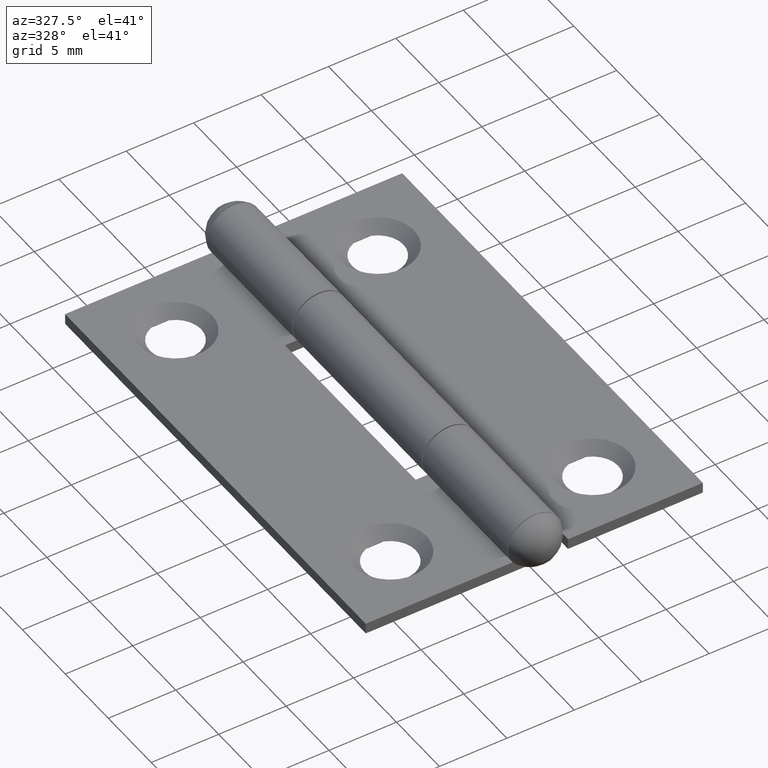
[diagram: clean part render]
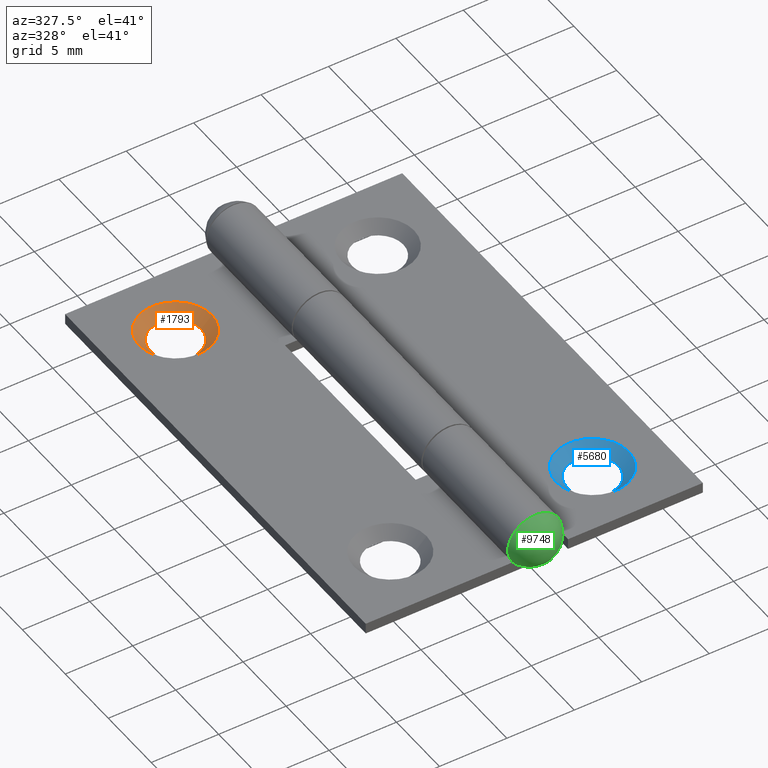
[diagram: same view with three faces highlighted in distinct colors, each labeled with its STEP entity id]
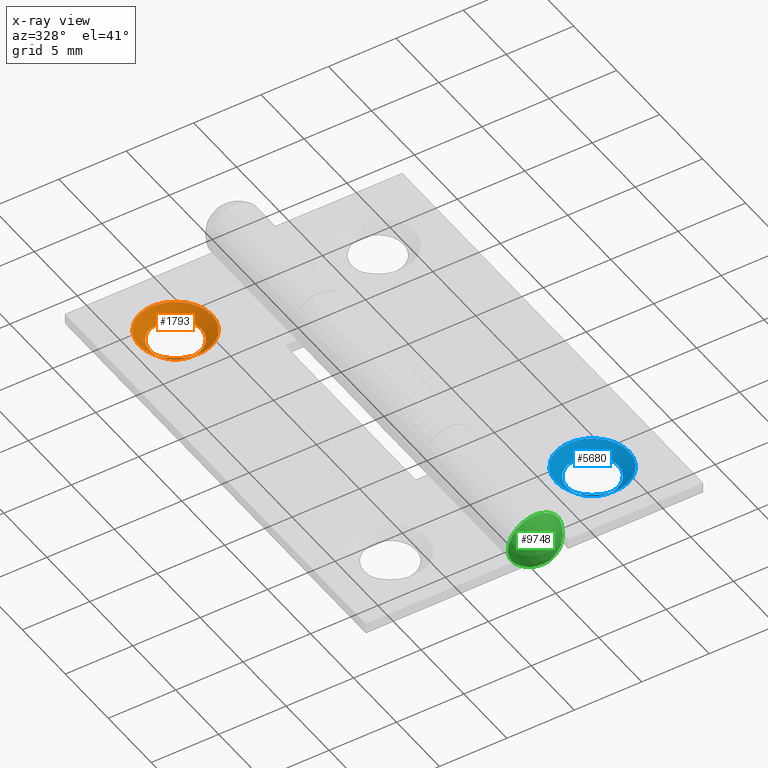
[diagram: x-ray of the same camera — body ghosted, the three highlighted faces saturated]
A machine part, auxiliary view with three faces highlighted in distinct colors.
The next image is the same camera in x-ray (body ghosted, the three faces saturated) — at least one of them is partly hidden behind the body in this view.
Their STEP definitions:

[orange] entity #1793 — the highlighted conical surface has half-angle 45 deg.
#804 = AXIS2_PLACEMENT_3D ( 'NONE', #2760, #5975, #3543 ) ;
#1010 = CONICAL_SURFACE ( 'NONE', #9125, 1.900000000000000577, 0.7853981633974504994 ) ;
#1205 = DIRECTION ( 'NONE',  ( -1.127570259384924611E-16, 0.000000000000000000, -1.000000000000000000 ) ) ;
#1235 = CARTESIAN_POINT ( 'NONE',  ( -9.500000000000005329, 12.49999999999999822, 0.8000000000000010436 ) ) ;
#1275 = EDGE_CURVE ( 'NONE', #7645, #7645, #4581, .T. ) ;
#1793 = ADVANCED_FACE ( 'NONE', ( #4329, #8900 ), #1010, .F. ) ;
#2004 = CIRCLE ( 'NONE', #7117, 2.700000000000021938 ) ;
#2298 = EDGE_LOOP ( 'NONE', ( #8690 ) ) ;
#2364 = EDGE_LOOP ( 'NONE', ( #7706 ) ) ;
#2760 = CARTESIAN_POINT ( 'NONE',  ( -9.500000000000005329, 12.49999999999999822, 0.000000000000000000 ) ) ;
#3543 = DIRECTION ( 'NONE',  ( 1.000000000000000000, 0.000000000000000000, 0.000000000000000000 ) ) ;
#4329 = FACE_OUTER_BOUND ( 'NONE', #2364, .T. ) ;
#4498 = CARTESIAN_POINT ( 'NONE',  ( -7.600000000000004086, 12.49999999999999822, 0.000000000000000000 ) ) ;
#4581 = CIRCLE ( 'NONE', #804, 1.900000000000000577 ) ;
#5975 = DIRECTION ( 'NONE',  ( 0.000000000000000000, 0.000000000000000000, 1.000000000000000000 ) ) ;
#6920 = CARTESIAN_POINT ( 'NONE',  ( -12.20000000000002593, 12.49999999999999822, 0.8000000000000013767 ) ) ;
#7117 = AXIS2_PLACEMENT_3D ( 'NONE', #1235, #1205, #9743 ) ;
#7645 = VERTEX_POINT ( 'NONE', #4498 ) ;
#7706 = ORIENTED_EDGE ( 'NONE', *, *, #7957, .F. ) ;
#7814 = DIRECTION ( 'NONE',  ( 1.000000000000000000, 0.000000000000000000, 0.000000000000000000 ) ) ;
#7957 = EDGE_CURVE ( 'NONE', #9865, #9865, #2004, .T. ) ;
#8623 = CARTESIAN_POINT ( 'NONE',  ( -9.500000000000005329, 12.49999999999999822, -1.704365815147212970E-14 ) ) ;
#8690 = ORIENTED_EDGE ( 'NONE', *, *, #1275, .F. ) ;
#8900 = FACE_BOUND ( 'NONE', #2298, .T. ) ;
#9125 = AXIS2_PLACEMENT_3D ( 'NONE', #8623, #9468, #7814 ) ;
#9468 = DIRECTION ( 'NONE',  ( 0.000000000000000000, 0.000000000000000000, 1.000000000000000000 ) ) ;
#9743 = DIRECTION ( 'NONE',  ( -1.000000000000000000, 0.000000000000000000, 1.204669080539439483E-16 ) ) ;
#9865 = VERTEX_POINT ( 'NONE', #6920 ) ;

[blue] entity #5680 — the highlighted conical surface has half-angle 45 deg.
#348 = DIRECTION ( 'NONE',  ( 0.000000000000000000, 0.000000000000000000, 1.000000000000000000 ) ) ;
#1617 = AXIS2_PLACEMENT_3D ( 'NONE', #10051, #7012, #2194 ) ;
#2179 = CARTESIAN_POINT ( 'NONE',  ( -12.19999999999999929, 12.49999999999999822, 0.8000000000000013767 ) ) ;
#2189 = AXIS2_PLACEMENT_3D ( 'NONE', #7026, #3841, #3038 ) ;
#2194 = DIRECTION ( 'NONE',  ( -1.000000000000000000, 0.000000000000000000, 1.204669080539452055E-16 ) ) ;
#2213 = VERTEX_POINT ( 'NONE', #2179 ) ;
#2246 = EDGE_CURVE ( 'NONE', #9470, #9470, #8902, .T. ) ;
#2282 = EDGE_LOOP ( 'NONE', ( #6548 ) ) ;
#3038 = DIRECTION ( 'NONE',  ( 1.000000000000000000, 0.000000000000000000, 0.000000000000000000 ) ) ;
#3459 = CARTESIAN_POINT ( 'NONE',  ( -9.500000000000005329, 12.49999999999999822, 7.025630077706070310E-15 ) ) ;
#3841 = DIRECTION ( 'NONE',  ( 0.000000000000000000, 0.000000000000000000, 1.000000000000000000 ) ) ;
#4286 = DIRECTION ( 'NONE',  ( 1.000000000000000000, 0.000000000000000000, 0.000000000000000000 ) ) ;
#5096 = FACE_OUTER_BOUND ( 'NONE', #5580, .T. ) ;
#5580 = EDGE_LOOP ( 'NONE', ( #10023 ) ) ;
#5586 = CIRCLE ( 'NONE', #1617, 2.699999999999993960 ) ;
#5680 = ADVANCED_FACE ( 'NONE', ( #5096, #7699 ), #8428, .F. ) ;
#5828 = EDGE_CURVE ( 'NONE', #2213, #2213, #5586, .T. ) ;
#5867 = AXIS2_PLACEMENT_3D ( 'NONE', #3459, #348, #4286 ) ;
#6548 = ORIENTED_EDGE ( 'NONE', *, *, #2246, .F. ) ;
#7012 = DIRECTION ( 'NONE',  ( -1.127570259384924611E-16, 0.000000000000000000, -1.000000000000000000 ) ) ;
#7026 = CARTESIAN_POINT ( 'NONE',  ( -9.500000000000005329, 12.49999999999999822, 2.168404344971008868E-16 ) ) ;
#7699 = FACE_BOUND ( 'NONE', #2282, .T. ) ;
#8428 = CONICAL_SURFACE ( 'NONE', #5867, 1.900000000000000577, 0.7853981633974482790 ) ;
#8902 = CIRCLE ( 'NONE', #2189, 1.900000000000000577 ) ;
#9470 = VERTEX_POINT ( 'NONE', #9999 ) ;
#9999 = CARTESIAN_POINT ( 'NONE',  ( -7.600000000000004086, 12.49999999999999822, 2.168404344971008868E-16 ) ) ;
#10023 = ORIENTED_EDGE ( 'NONE', *, *, #5828, .F. ) ;
#10051 = CARTESIAN_POINT ( 'NONE',  ( -9.500000000000005329, 12.49999999999999822, 0.8000000000000010436 ) ) ;

[green] entity #9748 — the highlighted spherical surface has radius 2.0833 mm.
#1 = FACE_OUTER_BOUND ( 'NONE', #128, .T. ) ;
#128 = EDGE_LOOP ( 'NONE', ( #8698 ) ) ;
#902 = DIRECTION ( 'NONE',  ( 0.000000000000000000, 0.000000000000000000, -1.000000000000000000 ) ) ;
#4404 = AXIS2_PLACEMENT_3D ( 'NONE', #10189, #8544, #7769 ) ;
#4827 = DIRECTION ( 'NONE',  ( 1.000000000000000000, 0.000000000000000000, 0.000000000000000000 ) ) ;
#4894 = SPHERICAL_SURFACE ( 'NONE', #5135, 2.083333333333326820 ) ;
#5135 = AXIS2_PLACEMENT_3D ( 'NONE', #7300, #902, #4827 ) ;
#5238 = CARTESIAN_POINT ( 'NONE',  ( 0.000000000000000000, -17.55000000000000071, -1.999999999999995781 ) ) ;
#5806 = VERTEX_POINT ( 'NONE', #5238 ) ;
#6935 = CIRCLE ( 'NONE', #4404, 1.999999999999995781 ) ;
#7300 = CARTESIAN_POINT ( 'NONE',  ( 0.000000000000000000, -16.96666666666667567, 0.000000000000000000 ) ) ;
#7769 = DIRECTION ( 'NONE',  ( 0.000000000000000000, 0.000000000000000000, -1.000000000000000000 ) ) ;
#8460 = EDGE_CURVE ( 'NONE', #5806, #5806, #6935, .T. ) ;
#8544 = DIRECTION ( 'NONE',  ( 0.000000000000000000, -1.000000000000000000, 0.000000000000000000 ) ) ;
#8698 = ORIENTED_EDGE ( 'NONE', *, *, #8460, .T. ) ;
#9748 = ADVANCED_FACE ( 'NONE', ( #1 ), #4894, .T. ) ;
#10189 = CARTESIAN_POINT ( 'NONE',  ( 0.000000000000000000, -17.55000000000000071, 0.000000000000000000 ) ) ;